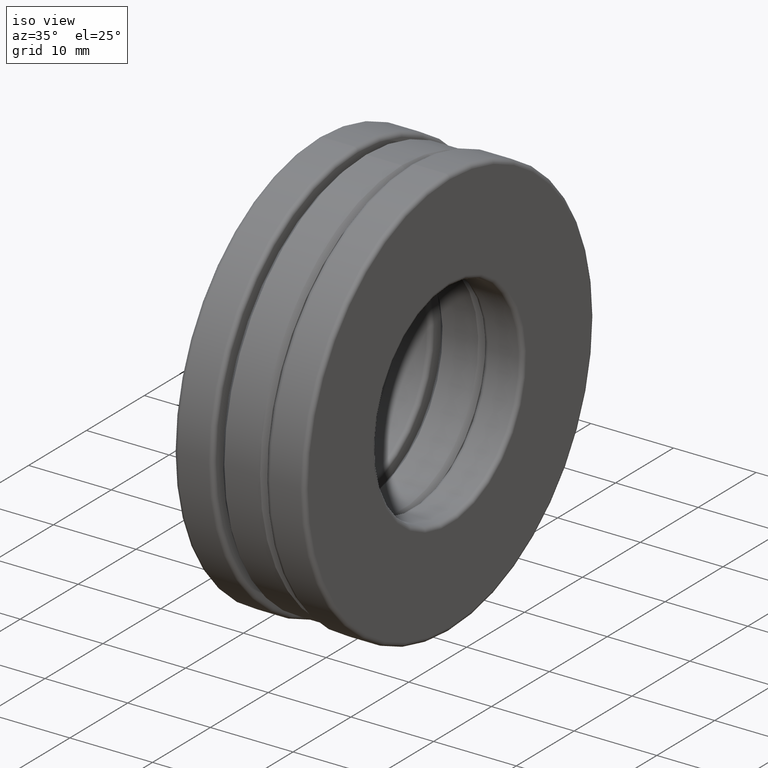
[diagram: clean part render]
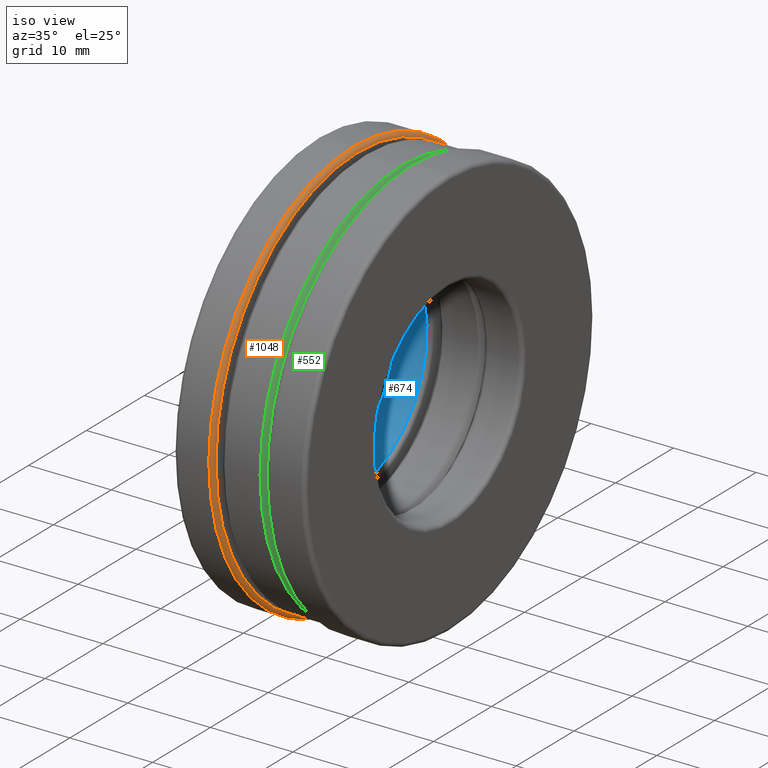
[diagram: same view with three faces highlighted in distinct colors, each labeled with its STEP entity id]
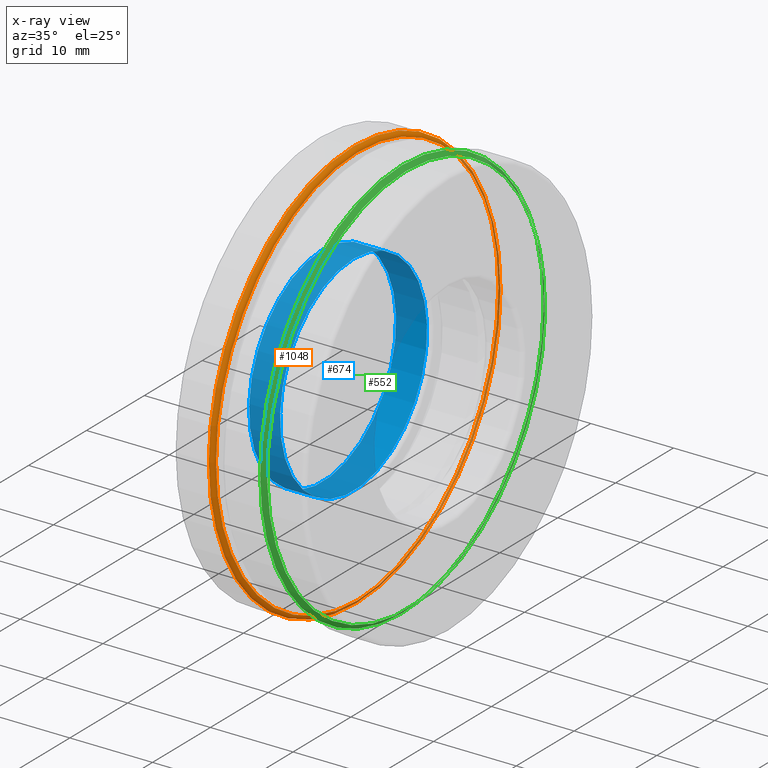
[diagram: x-ray of the same camera — body ghosted, the three highlighted faces saturated]
A machine part, iso view with three faces highlighted in distinct colors.
The next image is the same camera in x-ray (body ghosted, the three faces saturated) — at least one of them is partly hidden behind the body in this view.
Their STEP definitions:

[orange] entity #1048 — the highlighted toroidal blend (fillet) surface has major radius 24.4951 mm and minor (blend) radius 0.508 mm.
#162 = CIRCLE ( 'NONE', #327, 0.9843749999999997800 ) ;
#229 = ORIENTED_EDGE ( 'NONE', *, *, #779, .F. ) ;
#258 = AXIS2_PLACEMENT_3D ( 'NONE', #666, #1222, #1337 ) ;
#327 = AXIS2_PLACEMENT_3D ( 'NONE', #387, #970, #1174 ) ;
#370 = FACE_OUTER_BOUND ( 'NONE', #1419, .T. ) ;
#387 = CARTESIAN_POINT ( 'NONE',  ( -0.1449999999999999900, 0.0000000000000000000, 0.0000000000000000000 ) ) ;
#410 = FACE_OUTER_BOUND ( 'NONE', #486, .T. ) ;
#428 = CARTESIAN_POINT ( 'NONE',  ( -0.1250000000000000600, 0.0000000000000000000, 0.9643749999999998700 ) ) ;
#486 = EDGE_LOOP ( 'NONE', ( #229 ) ) ;
#492 = ORIENTED_EDGE ( 'NONE', *, *, #1300, .T. ) ;
#593 = DIRECTION ( 'NONE',  ( -1.000000000000000000, -0.0000000000000000000, -0.0000000000000000000 ) ) ;
#600 = VERTEX_POINT ( 'NONE', #998 ) ;
#626 = TOROIDAL_SURFACE ( 'NONE', #258, 0.9643749999999998700, 0.01999999999999993100 ) ;
#666 = CARTESIAN_POINT ( 'NONE',  ( -0.1449999999999999900, 0.0000000000000000000, 0.0000000000000000000 ) ) ;
#739 = AXIS2_PLACEMENT_3D ( 'NONE', #1264, #593, #1470 ) ;
#779 = EDGE_CURVE ( 'NONE', #600, #600, #162, .T. ) ;
#970 = DIRECTION ( 'NONE',  ( -1.000000000000000000, -0.0000000000000000000, -0.0000000000000000000 ) ) ;
#998 = CARTESIAN_POINT ( 'NONE',  ( -0.1449999999999999900, 0.0000000000000000000, 0.9843749999999997800 ) ) ;
#1048 = ADVANCED_FACE ( 'NONE', ( #410, #370 ), #626, .T. ) ;
#1173 = CIRCLE ( 'NONE', #739, 0.9643749999999998700 ) ;
#1174 = DIRECTION ( 'NONE',  ( 0.0000000000000000000, 0.0000000000000000000, 1.000000000000000000 ) ) ;
#1222 = DIRECTION ( 'NONE',  ( -1.000000000000000000, -0.0000000000000000000, -0.0000000000000000000 ) ) ;
#1227 = VERTEX_POINT ( 'NONE', #428 ) ;
#1264 = CARTESIAN_POINT ( 'NONE',  ( -0.1250000000000000600, 0.0000000000000000000, 0.0000000000000000000 ) ) ;
#1300 = EDGE_CURVE ( 'NONE', #1227, #1227, #1173, .T. ) ;
#1337 = DIRECTION ( 'NONE',  ( 0.0000000000000000000, 0.0000000000000000000, 1.000000000000000000 ) ) ;
#1419 = EDGE_LOOP ( 'NONE', ( #492 ) ) ;
#1470 = DIRECTION ( 'NONE',  ( 0.0000000000000000000, 0.0000000000000000000, 1.000000000000000000 ) ) ;

[blue] entity #674 — the highlighted cylindrical surface (bore or boss wall) has radius 12.7 mm, axis along (-1, -0, -0).
#83 = CIRCLE ( 'NONE', #876, 0.5000000000000000000 ) ;
#115 = ORIENTED_EDGE ( 'NONE', *, *, #712, .T. ) ;
#172 = DIRECTION ( 'NONE',  ( 0.0000000000000000000, 0.0000000000000000000, 1.000000000000000000 ) ) ;
#264 = VERTEX_POINT ( 'NONE', #1313 ) ;
#289 = CARTESIAN_POINT ( 'NONE',  ( -0.1450000000000000500, 0.0000000000000000000, 0.0000000000000000000 ) ) ;
#413 = CIRCLE ( 'NONE', #993, 0.5000000000000000000 ) ;
#546 = CARTESIAN_POINT ( 'NONE',  ( -0.2925000000000000400, 0.0000000000000000000, 0.5000000000000000000 ) ) ;
#674 = ADVANCED_FACE ( 'NONE', ( #1105, #1127 ), #1426, .F. ) ;
#712 = EDGE_CURVE ( 'NONE', #1261, #1261, #83, .T. ) ;
#838 = ORIENTED_EDGE ( 'NONE', *, *, #1471, .F. ) ;
#846 = DIRECTION ( 'NONE',  ( -1.000000000000000000, -0.0000000000000000000, -0.0000000000000000000 ) ) ;
#848 = DIRECTION ( 'NONE',  ( -1.000000000000000000, -0.0000000000000000000, -0.0000000000000000000 ) ) ;
#876 = AXIS2_PLACEMENT_3D ( 'NONE', #974, #848, #172 ) ;
#954 = EDGE_LOOP ( 'NONE', ( #115 ) ) ;
#974 = CARTESIAN_POINT ( 'NONE',  ( -0.2925000000000000400, 0.0000000000000000000, 0.0000000000000000000 ) ) ;
#993 = AXIS2_PLACEMENT_3D ( 'NONE', #289, #846, #1069 ) ;
#1055 = DIRECTION ( 'NONE',  ( -1.000000000000000000, -0.0000000000000000000, -0.0000000000000000000 ) ) ;
#1061 = EDGE_LOOP ( 'NONE', ( #838 ) ) ;
#1069 = DIRECTION ( 'NONE',  ( 0.0000000000000000000, 0.0000000000000000000, 1.000000000000000000 ) ) ;
#1105 = FACE_OUTER_BOUND ( 'NONE', #954, .T. ) ;
#1127 = FACE_OUTER_BOUND ( 'NONE', #1061, .T. ) ;
#1155 = CARTESIAN_POINT ( 'NONE',  ( 0.0000000000000000000, 0.0000000000000000000, 0.0000000000000000000 ) ) ;
#1261 = VERTEX_POINT ( 'NONE', #546 ) ;
#1293 = AXIS2_PLACEMENT_3D ( 'NONE', #1155, #1055, #1383 ) ;
#1313 = CARTESIAN_POINT ( 'NONE',  ( -0.1450000000000000500, 0.0000000000000000000, 0.5000000000000000000 ) ) ;
#1383 = DIRECTION ( 'NONE',  ( 0.0000000000000000000, 0.0000000000000000000, 1.000000000000000000 ) ) ;
#1426 = CYLINDRICAL_SURFACE ( 'NONE', #1293, 0.5000000000000000000 ) ;
#1471 = EDGE_CURVE ( 'NONE', #264, #264, #413, .T. ) ;

[green] entity #552 — the highlighted conical surface has half-angle 45 deg.
#19 = EDGE_LOOP ( 'NONE', ( #1444 ) ) ;
#111 = DIRECTION ( 'NONE',  ( 0.0000000000000000000, 0.0000000000000000000, 1.000000000000000000 ) ) ;
#185 = CARTESIAN_POINT ( 'NONE',  ( 0.08499999999999997800, 0.0000000000000000000, 0.9643749999999997600 ) ) ;
#212 = DIRECTION ( 'NONE',  ( -1.000000000000000000, -0.0000000000000000000, -0.0000000000000000000 ) ) ;
#220 = VERTEX_POINT ( 'NONE', #773 ) ;
#238 = DIRECTION ( 'NONE',  ( -1.000000000000000000, -0.0000000000000000000, -0.0000000000000000000 ) ) ;
#326 = DIRECTION ( 'NONE',  ( 0.0000000000000000000, 0.0000000000000000000, 1.000000000000000000 ) ) ;
#421 = AXIS2_PLACEMENT_3D ( 'NONE', #827, #1169, #940 ) ;
#499 = FACE_BOUND ( 'NONE', #1266, .T. ) ;
#552 = ADVANCED_FACE ( 'NONE', ( #499, #1288 ), #1005, .T. ) ;
#608 = AXIS2_PLACEMENT_3D ( 'NONE', #887, #212, #326 ) ;
#624 = EDGE_CURVE ( 'NONE', #220, #220, #769, .T. ) ;
#738 = VERTEX_POINT ( 'NONE', #185 ) ;
#769 = CIRCLE ( 'NONE', #421, 0.9443749999999996300 ) ;
#773 = CARTESIAN_POINT ( 'NONE',  ( 0.1050000000000000100, 0.0000000000000000000, 0.9443749999999996300 ) ) ;
#827 = CARTESIAN_POINT ( 'NONE',  ( 0.1050000000000000100, 0.0000000000000000000, 0.0000000000000000000 ) ) ;
#839 = CIRCLE ( 'NONE', #608, 0.9643749999999997600 ) ;
#887 = CARTESIAN_POINT ( 'NONE',  ( 0.08499999999999997800, 0.0000000000000000000, 0.0000000000000000000 ) ) ;
#940 = DIRECTION ( 'NONE',  ( 0.0000000000000000000, 0.0000000000000000000, 1.000000000000000000 ) ) ;
#1005 = CONICAL_SURFACE ( 'NONE', #1276, 0.9643749999999997600, 0.7853981633974491700 ) ;
#1050 = EDGE_CURVE ( 'NONE', #738, #738, #839, .T. ) ;
#1169 = DIRECTION ( 'NONE',  ( -1.000000000000000000, -0.0000000000000000000, -0.0000000000000000000 ) ) ;
#1197 = ORIENTED_EDGE ( 'NONE', *, *, #624, .T. ) ;
#1238 = CARTESIAN_POINT ( 'NONE',  ( 0.08499999999999997800, 0.0000000000000000000, 0.0000000000000000000 ) ) ;
#1266 = EDGE_LOOP ( 'NONE', ( #1197 ) ) ;
#1276 = AXIS2_PLACEMENT_3D ( 'NONE', #1238, #238, #111 ) ;
#1288 = FACE_OUTER_BOUND ( 'NONE', #19, .T. ) ;
#1444 = ORIENTED_EDGE ( 'NONE', *, *, #1050, .F. ) ;